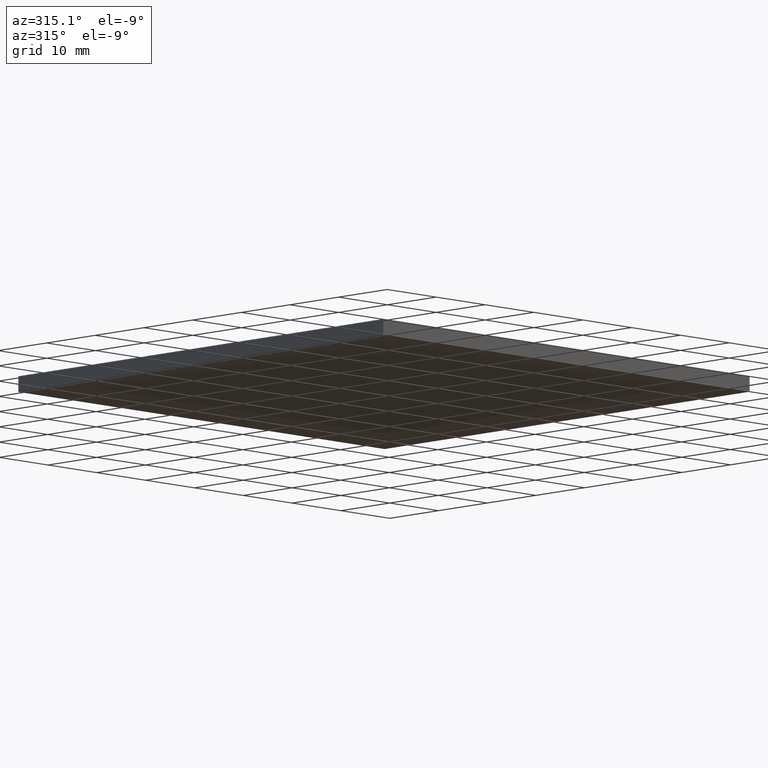
[diagram: clean part render]
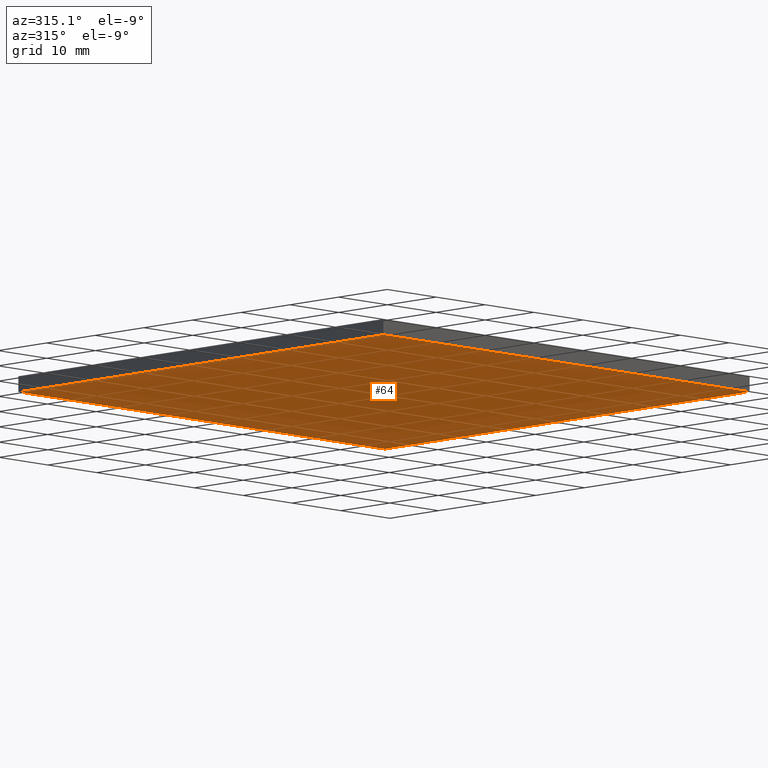
[diagram: same view with one face highlighted and labeled with its STEP entity id]
A machine part, auxiliary view. The second image highlights one B-rep face of the part: STEP entity #64.
In plain terms, the highlighted planar face has unit normal (-0, 0, 1).
Its self-contained STEP definition (entity closure, byte-faithful):
#3 = CARTESIAN_POINT ( 'NONE',  ( 341.2438073276552500, 222.1897255035797800, 0.0000000000000000000 ) ) ;
#11 = ORIENTED_EDGE ( 'NONE', *, *, #107, .F. ) ;
#15 = FACE_OUTER_BOUND ( 'NONE', #178, .T. ) ;
#23 = VERTEX_POINT ( 'NONE', #189 ) ;
#25 = VECTOR ( 'NONE', #46, 1000.000000000000000 ) ;
#41 = AXIS2_PLACEMENT_3D ( 'NONE', #68, #145, #174 ) ;
#45 = DIRECTION ( 'NONE',  ( -7.401486830834381200E-016, -1.000000000000000000, 0.0000000000000000000 ) ) ;
#46 = DIRECTION ( 'NONE',  ( -1.000000000000000000, -0.0000000000000000000, -0.0000000000000000000 ) ) ;
#60 = VECTOR ( 'NONE', #129, 1000.000000000000000 ) ;
#62 = ORIENTED_EDGE ( 'NONE', *, *, #163, .F. ) ;
#64 = ADVANCED_FACE ( 'NONE', ( #15 ), #148, .F. ) ;
#68 = CARTESIAN_POINT ( 'NONE',  ( 0.0000000000000000000, 0.0000000000000000000, 0.0000000000000000000 ) ) ;
#90 = EDGE_CURVE ( 'NONE', #199, #23, #183, .T. ) ;
#92 = DIRECTION ( 'NONE',  ( -0.0000000000000000000, 1.000000000000000000, -0.0000000000000000000 ) ) ;
#98 = ORIENTED_EDGE ( 'NONE', *, *, #121, .F. ) ;
#101 = CARTESIAN_POINT ( 'NONE',  ( 266.2438073276553000, 222.1897255035797800, 0.0000000000000000000 ) ) ;
#107 = EDGE_CURVE ( 'NONE', #138, #199, #190, .T. ) ;
#108 = LINE ( 'NONE', #134, #25 ) ;
#121 = EDGE_CURVE ( 'NONE', #23, #170, #108, .T. ) ;
#124 = VECTOR ( 'NONE', #92, 1000.000000000000000 ) ;
#129 = DIRECTION ( 'NONE',  ( 1.000000000000000000, 0.0000000000000000000, 0.0000000000000000000 ) ) ;
#132 = VECTOR ( 'NONE', #45, 1000.000000000000000 ) ;
#134 = CARTESIAN_POINT ( 'NONE',  ( 266.2438073276553000, 222.1897255035797800, 0.0000000000000000000 ) ) ;
#137 = LINE ( 'NONE', #181, #132 ) ;
#138 = VERTEX_POINT ( 'NONE', #198 ) ;
#145 = DIRECTION ( 'NONE',  ( -0.0000000000000000000, 0.0000000000000000000, 1.000000000000000000 ) ) ;
#148 = PLANE ( 'NONE',  #41 ) ;
#151 = CARTESIAN_POINT ( 'NONE',  ( 341.2438073276552500, 147.1897255035798100, 0.0000000000000000000 ) ) ;
#163 = EDGE_CURVE ( 'NONE', #170, #138, #137, .T. ) ;
#170 = VERTEX_POINT ( 'NONE', #101 ) ;
#174 = DIRECTION ( 'NONE',  ( 1.000000000000000000, 0.0000000000000000000, 0.0000000000000000000 ) ) ;
#176 = CARTESIAN_POINT ( 'NONE',  ( 266.2438073276552500, 147.1897255035798100, 0.0000000000000000000 ) ) ;
#178 = EDGE_LOOP ( 'NONE', ( #62, #98, #185, #11 ) ) ;
#181 = CARTESIAN_POINT ( 'NONE',  ( 266.2438073276553000, 222.1897255035797800, 0.0000000000000000000 ) ) ;
#183 = LINE ( 'NONE', #3, #124 ) ;
#185 = ORIENTED_EDGE ( 'NONE', *, *, #90, .F. ) ;
#189 = CARTESIAN_POINT ( 'NONE',  ( 341.2438073276552500, 222.1897255035797800, 0.0000000000000000000 ) ) ;
#190 = LINE ( 'NONE', #176, #60 ) ;
#198 = CARTESIAN_POINT ( 'NONE',  ( 266.2438073276552500, 147.1897255035798100, 0.0000000000000000000 ) ) ;
#199 = VERTEX_POINT ( 'NONE', #151 ) ;